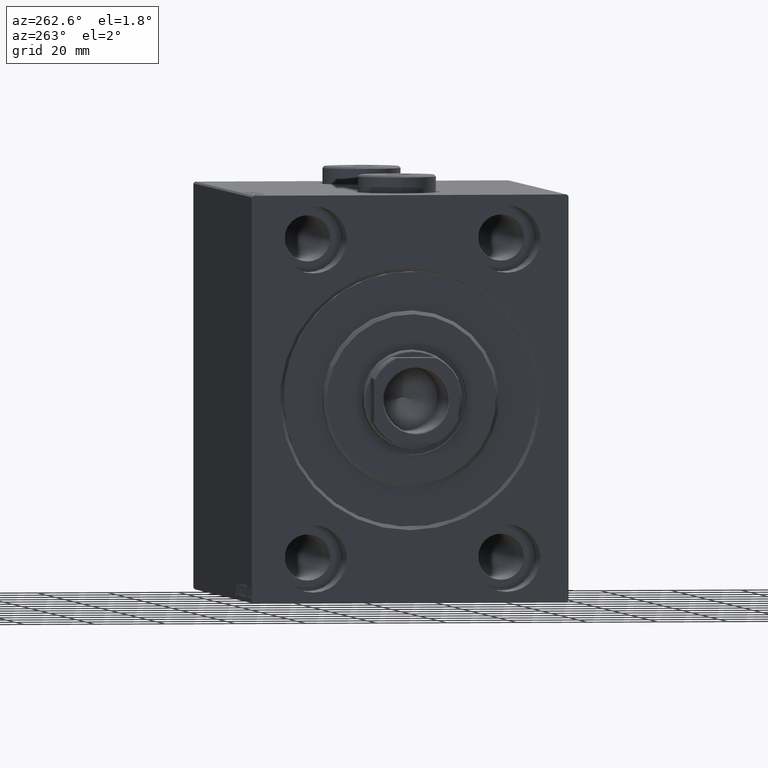
[diagram: clean part render]
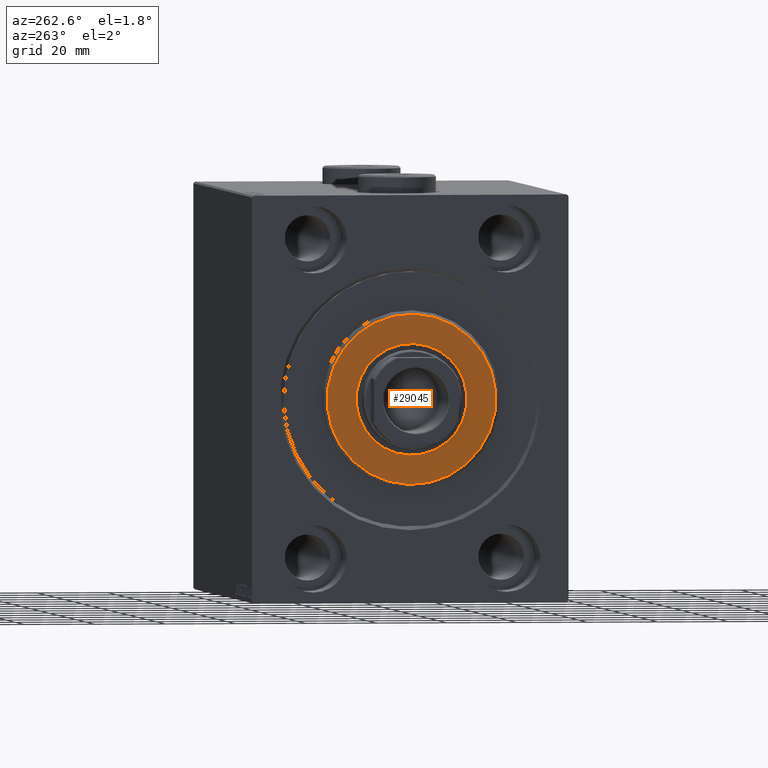
[diagram: same view with one face highlighted and labeled with its STEP entity id]
A machine part, auxiliary view. The second image highlights one B-rep face of the part: STEP entity #29045.
In plain terms, the highlighted planar face has unit normal (-1, 0, 0).
Its self-contained STEP definition (entity closure, byte-faithful):
#3063 = EDGE_CURVE ( 'NONE', #25349, #16005, #32349, .T. ) ;
#3650 = EDGE_CURVE ( 'NONE', #16005, #25349, #30903, .T. ) ;
#3710 = DIRECTION ( 'NONE',  ( 0.000000000000000000, 0.000000000000000000, -1.000000000000000000 ) ) ;
#4632 = EDGE_CURVE ( 'NONE', #35117, #40720, #14112, .T. ) ;
#4897 = EDGE_LOOP ( 'NONE', ( #26810, #15789 ) ) ;
#6292 = DIRECTION ( 'NONE',  ( -1.000000000000000000, 0.000000000000000000, -0.000000000000000000 ) ) ;
#6512 = DIRECTION ( 'NONE',  ( 0.000000000000000000, 0.000000000000000000, -1.000000000000000000 ) ) ;
#7947 = AXIS2_PLACEMENT_3D ( 'NONE', #27078, #22735, #22962 ) ;
#8205 = AXIS2_PLACEMENT_3D ( 'NONE', #40992, #20348, #13474 ) ;
#10349 = DIRECTION ( 'NONE',  ( 1.000000000000000000, -0.000000000000000000, 0.000000000000000000 ) ) ;
#11179 = EDGE_LOOP ( 'NONE', ( #34191, #44344 ) ) ;
#12102 = CARTESIAN_POINT ( 'NONE',  ( 3.000000000000000000, 0.000000000000000000, 0.000000000000000000 ) ) ;
#13474 = DIRECTION ( 'NONE',  ( 0.000000000000000000, 0.000000000000000000, -1.000000000000000000 ) ) ;
#14112 = CIRCLE ( 'NONE', #38994, 24.00000000000000711 ) ;
#14563 = AXIS2_PLACEMENT_3D ( 'NONE', #12102, #22634, #44408 ) ;
#15789 = ORIENTED_EDGE ( 'NONE', *, *, #4632, .T. ) ;
#16005 = VERTEX_POINT ( 'NONE', #45129 ) ;
#17735 = AXIS2_PLACEMENT_3D ( 'NONE', #23918, #6292, #6512 ) ;
#18968 = PLANE ( 'NONE',  #14563 ) ;
#20348 = DIRECTION ( 'NONE',  ( -1.000000000000000000, 0.000000000000000000, -0.000000000000000000 ) ) ;
#20563 = CARTESIAN_POINT ( 'NONE',  ( 3.000000000000000000, 1.928818708657080950E-15, -15.75000000000000000 ) ) ;
#21526 = CARTESIAN_POINT ( 'NONE',  ( 3.000000000000000000, 0.000000000000000000, 24.00000000000000711 ) ) ;
#22634 = DIRECTION ( 'NONE',  ( 1.000000000000000000, -0.000000000000000000, 0.000000000000000000 ) ) ;
#22735 = DIRECTION ( 'NONE',  ( 1.000000000000000000, -0.000000000000000000, 0.000000000000000000 ) ) ;
#22962 = DIRECTION ( 'NONE',  ( 0.000000000000000000, 0.000000000000000000, -1.000000000000000000 ) ) ;
#23918 = CARTESIAN_POINT ( 'NONE',  ( 3.000000000000000000, 0.000000000000000000, 0.000000000000000000 ) ) ;
#25020 = CARTESIAN_POINT ( 'NONE',  ( 3.000000000000000000, 3.000384657911015469E-15, -24.00000000000000711 ) ) ;
#25349 = VERTEX_POINT ( 'NONE', #20563 ) ;
#26810 = ORIENTED_EDGE ( 'NONE', *, *, #27672, .T. ) ;
#26963 = CIRCLE ( 'NONE', #7947, 24.00000000000000711 ) ;
#27078 = CARTESIAN_POINT ( 'NONE',  ( 3.000000000000000000, 0.000000000000000000, 0.000000000000000000 ) ) ;
#27672 = EDGE_CURVE ( 'NONE', #40720, #35117, #26963, .T. ) ;
#29045 = ADVANCED_FACE ( 'NONE', ( #36412, #36627 ), #18968, .T. ) ;
#30903 = CIRCLE ( 'NONE', #17735, 15.75000000000000000 ) ;
#31672 = CARTESIAN_POINT ( 'NONE',  ( 3.000000000000000000, 0.000000000000000000, 0.000000000000000000 ) ) ;
#32349 = CIRCLE ( 'NONE', #8205, 15.75000000000000000 ) ;
#34191 = ORIENTED_EDGE ( 'NONE', *, *, #3650, .T. ) ;
#35117 = VERTEX_POINT ( 'NONE', #25020 ) ;
#36412 = FACE_OUTER_BOUND ( 'NONE', #4897, .T. ) ;
#36627 = FACE_BOUND ( 'NONE', #11179, .T. ) ;
#38994 = AXIS2_PLACEMENT_3D ( 'NONE', #31672, #10349, #3710 ) ;
#40720 = VERTEX_POINT ( 'NONE', #21526 ) ;
#40992 = CARTESIAN_POINT ( 'NONE',  ( 3.000000000000000000, 0.000000000000000000, 0.000000000000000000 ) ) ;
#44344 = ORIENTED_EDGE ( 'NONE', *, *, #3063, .T. ) ;
#44408 = DIRECTION ( 'NONE',  ( 0.000000000000000000, 0.000000000000000000, -1.000000000000000000 ) ) ;
#45129 = CARTESIAN_POINT ( 'NONE',  ( 3.000000000000000000, 0.000000000000000000, 15.75000000000000000 ) ) ;